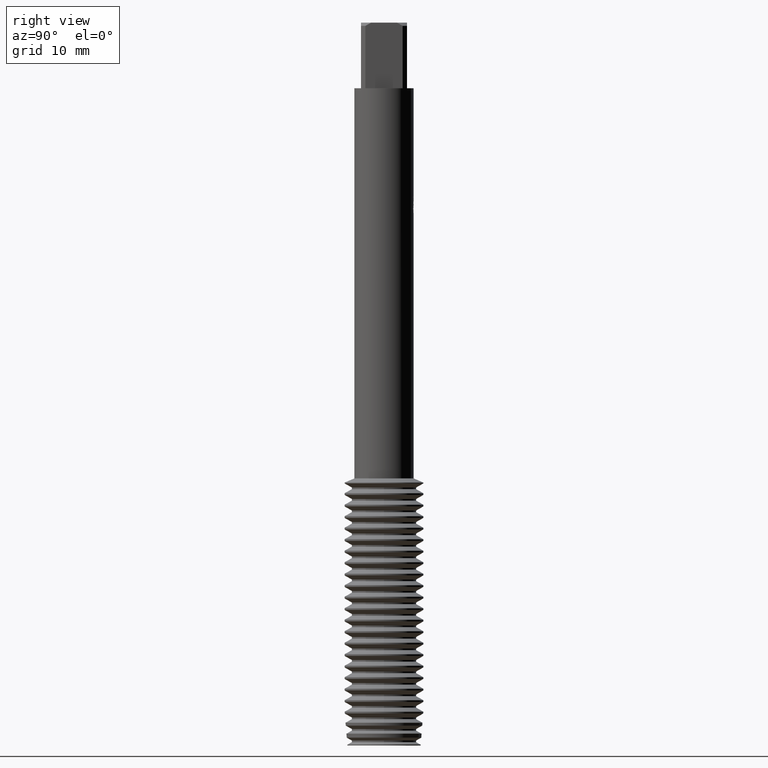
[diagram: clean part render]
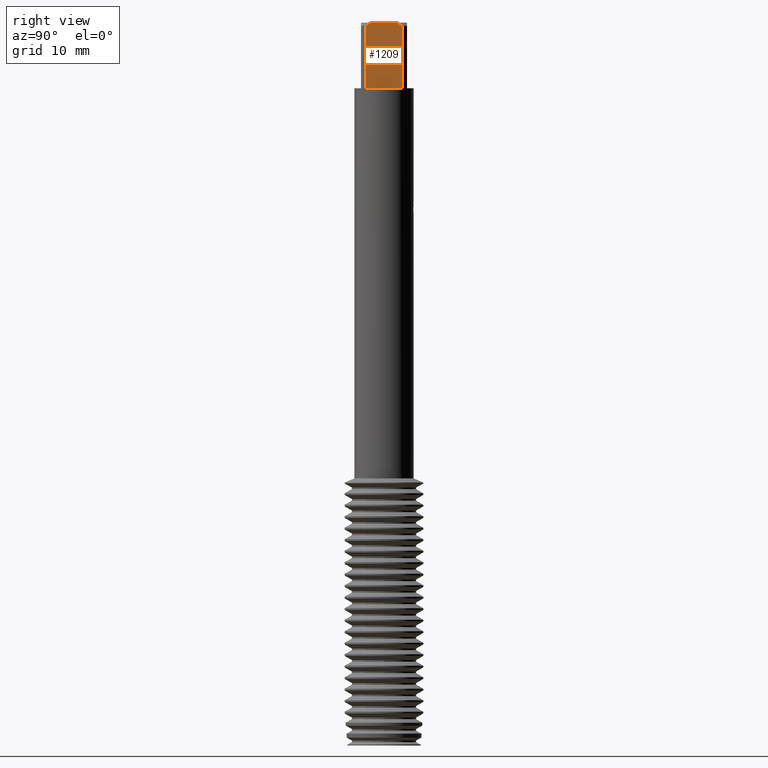
[diagram: same view with one face highlighted and labeled with its STEP entity id]
A machine part, right view. The second image highlights one B-rep face of the part: STEP entity #1209.
In plain terms, the highlighted planar face has unit normal (1, 0, 0).
Its self-contained STEP definition (entity closure, byte-faithful):
#1209=ADVANCED_FACE('',(#3520),#3521,.T.);
#1317=VERTEX_POINT('',#3644);
#1423=VERTEX_POINT('',#3759);
#1433=EDGE_CURVE('',#1423,#1317,#3770,.T.);
#1695=EDGE_CURVE('',#2275,#1787,#4059,.T.);
#1775=VERTEX_POINT('',#4147);
#1787=VERTEX_POINT('',#4160);
#2275=VERTEX_POINT('',#4699);
#2445=EDGE_CURVE('',#1775,#1423,#4880,.T.);
#2771=VERTEX_POINT('',#5239);
#2941=EDGE_CURVE('',#1787,#2771,#5426,.T.);
#3085=EDGE_CURVE('',#2771,#1775,#5583,.T.);
#3443=EDGE_CURVE('',#1317,#2275,#5977,.T.);
#3520=FACE_OUTER_BOUND('',#6061,.T.);
#3521=PLANE('',#6062);
#3644=CARTESIAN_POINT('',(3.5,-2.82842712474619,-10.0));
#3759=CARTESIAN_POINT('',(3.5,2.82842712474619,-10.0));
#3770=LINE('',#6428,#6429);
#4059=(B_SPLINE_CURVE(2,(#6856,#6857,#6858),.UNSPECIFIED.,.F.,.F.)B_SPLINE_CURVE_WITH_KNOTS((3,3),(0.0,1.02290682797908),.UNSPECIFIED.)RATIONAL_B_SPLINE_CURVE((1.0,1.00555141588971,1.0))BOUNDED_CURVE()REPRESENTATION_ITEM('')GEOMETRIC_REPRESENTATION_ITEM()CURVE());
#4147=CARTESIAN_POINT('',(3.5,2.82842712474619,-0.5));
#4160=CARTESIAN_POINT('',(3.5,-1.93649167310371,0.0));
#4699=CARTESIAN_POINT('',(3.5,-2.82842712474619,-0.5));
#4880=LINE('',#8028,#8029);
#5239=CARTESIAN_POINT('',(3.5,1.93649167310371,0.0));
#5426=LINE('',#8830,#8831);
#5583=(B_SPLINE_CURVE(2,(#9045,#9046,#9047),.UNSPECIFIED.,.F.,.F.)B_SPLINE_CURVE_WITH_KNOTS((3,3),(0.0,1.02290682797908),.UNSPECIFIED.)RATIONAL_B_SPLINE_CURVE((1.0,1.00555141588971,1.0))BOUNDED_CURVE()REPRESENTATION_ITEM('')GEOMETRIC_REPRESENTATION_ITEM()CURVE());
#5977=LINE('',#9593,#9594);
#6061=EDGE_LOOP('',(#9678,#9679,#9680,#9681,#9682,#9683));
#6062=AXIS2_PLACEMENT_3D('',#9684,#9685,#9686);
#6428=CARTESIAN_POINT('',(3.5,0.0,-10.0));
#6429=VECTOR('',#10017,1.0);
#6856=CARTESIAN_POINT('',(3.5,-2.82842712474619,-0.5));
#6857=CARTESIAN_POINT('',(3.5,-2.3562260032884,-0.203203008829607));
#6858=CARTESIAN_POINT('',(3.5,-1.93649167310371,5.55111512312578E-017));
#8028=CARTESIAN_POINT('',(3.5,2.82842712474619,-5.25));
#8029=VECTOR('',#11414,1.0);
#8830=CARTESIAN_POINT('',(3.5,1.0,0.0));
#8831=VECTOR('',#12098,1.0);
#9045=CARTESIAN_POINT('',(3.5,1.93649167310371,5.55111512312578E-017));
#9046=CARTESIAN_POINT('',(3.5,2.3562260032884,-0.203203008829607));
#9047=CARTESIAN_POINT('',(3.5,2.82842712474619,-0.5));
#9593=CARTESIAN_POINT('',(3.5,-2.82842712474619,-5.25));
#9594=VECTOR('',#12825,1.0);
#9678=ORIENTED_EDGE('',*,*,#2445,.F.);
#9679=ORIENTED_EDGE('',*,*,#3085,.F.);
#9680=ORIENTED_EDGE('',*,*,#2941,.F.);
#9681=ORIENTED_EDGE('',*,*,#1695,.F.);
#9682=ORIENTED_EDGE('',*,*,#3443,.F.);
#9683=ORIENTED_EDGE('',*,*,#1433,.F.);
#9684=CARTESIAN_POINT('',(3.5,0.0,-4.5));
#9685=DIRECTION('',(1.0,0.0,0.0));
#9686=DIRECTION('',(0.0,0.0,-1.0));
#10017=DIRECTION('',(0.0,-1.0,0.0));
#11414=DIRECTION('',(0.0,0.0,-1.0));
#12098=DIRECTION('',(-0.0,1.0,0.0));
#12825=DIRECTION('',(-0.0,-0.0,1.0));